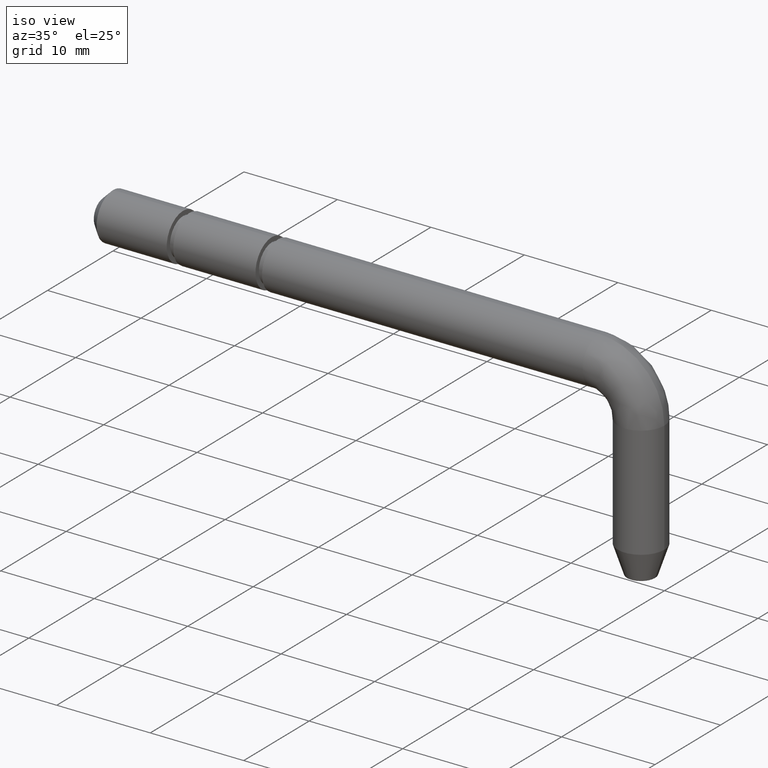
[diagram: clean part render]
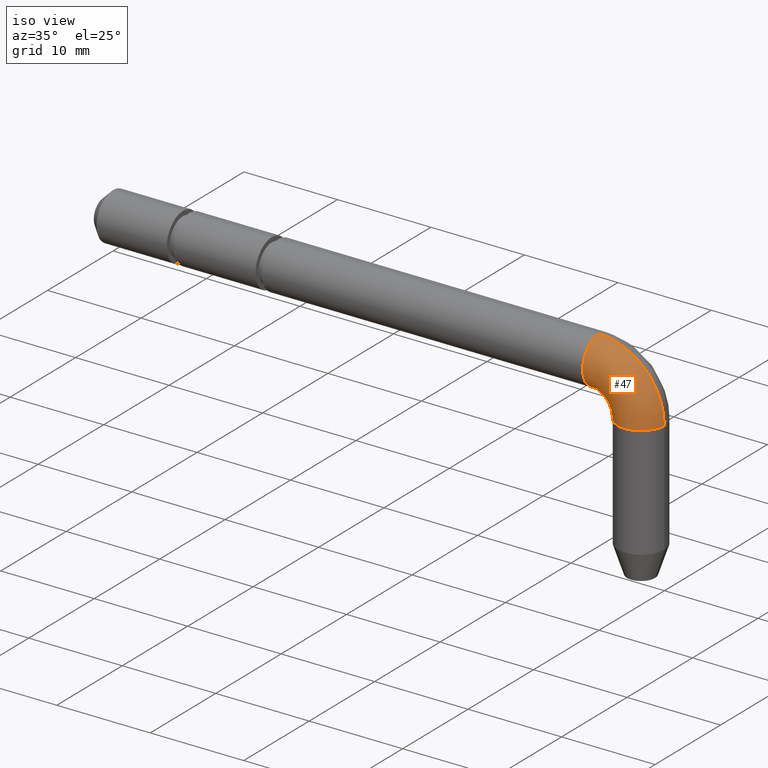
[diagram: same view with one face highlighted and labeled with its STEP entity id]
A machine part, iso view. The second image highlights one B-rep face of the part: STEP entity #47.
In plain terms, the highlighted face is a freeform B-spline surface patch.
Its self-contained STEP definition (entity closure, byte-faithful):
#47=ADVANCED_FACE('',(#139),#138,.T.);
#138=( BOUNDED_SURFACE() B_SPLINE_SURFACE( 2,2,((#378,#379,#380),(#381,#382,#383),(#384,#385,#386),(#387,#388,#389),(#390,#391,#392),(#393,#394,#395),(#396,#397,#398)), .UNSPECIFIED.,.F.,.F.,.F.) B_SPLINE_SURFACE_WITH_KNOTS((3,2,2,3),(3,3),(-1.48671086901E-03,1.04670198091E+00,2.09489067268E+00,3.14307936446E+00),(0.00000000000E+00,1.57079632677E+00), .UNSPECIFIED. ) GEOMETRIC_REPRESENTATION_ITEM() RATIONAL_B_SPLINE_SURFACE(((1.00000000000E+00,7.07106781191E-01,9.99999999991E-01),(8.65777512306E-01,6.12197149954E-01,8.65777512298E-01),(1.00000000000E+00,7.07106781191E-01,9.99999999991E-01),(8.65777512306E-01,6.12197149954E-01,8.65777512298E-01),(1.00000000000E+00,7.07106781191E-01,9.99999999991E-01),(8.65777512306E-01,6.12197149954E-01,8.65777512298E-01),(1.00000000000E+00,7.07106781191E-01,9.99999999991E-01))) REPRESENTATION_ITEM('') SURFACE() );
#139=FACE_OUTER_BOUND('',#399,.T.);
#378=CARTESIAN_POINT('',(5.30000000000E+01,3.71677580336E-03,2.49999723712E+00));
#379=CARTESIAN_POINT('',(5.99999972370E+01,3.71677580334E-03,2.49999723712E+00));
#380=CARTESIAN_POINT('',(5.99999972372E+01,3.71677580330E-03,-4.49999999992E+00));
#381=CARTESIAN_POINT('',(5.30000000000E+01,-1.44130967407E+00,2.50214557523E+00));
#382=CARTESIAN_POINT('',(6.00021455751E+01,-1.44130967407E+00,2.50214557523E+00));
#383=CARTESIAN_POINT('',(6.00021455753E+01,-1.44130967407E+00,-4.49999999992E+00));
#384=CARTESIAN_POINT('',(5.30000000000E+01,-2.16444378077E+00,1.25107278762E+00));
#385=CARTESIAN_POINT('',(5.87510727876E+01,-2.16444378077E+00,1.25107278762E+00));
#386=CARTESIAN_POINT('',(5.87510727877E+01,-2.16444378077E+00,-4.49999999994E+00));
#387=CARTESIAN_POINT('',(5.30000000000E+01,-2.88757788747E+00,4.51372272892E-12));
#388=CARTESIAN_POINT('',(5.75000000000E+01,-2.88757788747E+00,4.51372272892E-12));
#389=CARTESIAN_POINT('',(5.75000000001E+01,-2.88757788747E+00,-4.49999999997E+00));
#390=CARTESIAN_POINT('',(5.30000000000E+01,-2.16444378077E+00,-1.25107278761E+00));
#391=CARTESIAN_POINT('',(5.62489272124E+01,-2.16444378077E+00,-1.25107278761E+00));
#392=CARTESIAN_POINT('',(5.62489272124E+01,-2.16444378077E+00,-4.50000000000E+00));
#393=CARTESIAN_POINT('',(5.30000000000E+01,-1.44130967407E+00,-2.50214557522E+00));
#394=CARTESIAN_POINT('',(5.49978544248E+01,-1.44130967407E+00,-2.50214557522E+00));
#395=CARTESIAN_POINT('',(5.49978544248E+01,-1.44130967407E+00,-4.50000000002E+00));
#396=CARTESIAN_POINT('',(5.30000000000E+01,3.71677580333E-03,-2.49999723711E+00));
#397=CARTESIAN_POINT('',(5.50000027629E+01,3.71677580332E-03,-2.49999723711E+00));
#398=CARTESIAN_POINT('',(5.50000027629E+01,3.71677580331E-03,-4.50000000002E+00));
#399=EDGE_LOOP('',(#528,#529,#530,#531));
#528=ORIENTED_EDGE('',*,*,#620,.T.);
#529=ORIENTED_EDGE('',*,*,#597,.F.);
#530=ORIENTED_EDGE('',*,*,#621,.F.);
#531=ORIENTED_EDGE('',*,*,#599,.T.);
#597=EDGE_CURVE('',#642,#650,#651,.T.);
#599=EDGE_CURVE('',#643,#657,#664,.T.);
#620=EDGE_CURVE('',#657,#650,#810,.T.);
#621=EDGE_CURVE('',#643,#642,#816,.T.);
#642=VERTEX_POINT('',#946);
#643=VERTEX_POINT('',#947);
#650=VERTEX_POINT('',#952);
#651=CIRCLE('',#956,2.00000000007E+00);
#657=VERTEX_POINT('',#957);
#664=(BOUNDED_CURVE() B_SPLINE_CURVE(3,(#962,#963,#964,#965,#966),.UNSPECIFIED.,.F.,.F.) B_SPLINE_CURVE_WITH_KNOTS((4,1,4),(1.57079632684E+00,2.35619449023E+00,3.14159265361E+00),.UNSPECIFIED.) CURVE() GEOMETRIC_REPRESENTATION_ITEM() RATIONAL_B_SPLINE_CURVE((1.00000000000E+00,1.00000000000E+00,1.00000000000E+00,1.00000000000E+00,1.00000000000E+00)) REPRESENTATION_ITEM('') );
#810=CIRCLE('',#1070,2.50000000000E+00);
#816=CIRCLE('',#1074,2.50000000000E+00);
#946=CARTESIAN_POINT('',(5.50000000000E+01,1.48029736617E-16,-4.50000000000E+00));
#947=CARTESIAN_POINT('',(6.00000000000E+01,3.06151588456E-16,-4.50000000000E+00));
#952=CARTESIAN_POINT('',(5.30000000000E+01,-1.77635683940E-15,-2.50000000000E+00));
#953=CARTESIAN_POINT('',(5.30000000000E+01,-1.35407846116E-14,-4.50000000007E+00));
#954=DIRECTION('',(-3.34460052969E-15,-1.00000000000E+00,5.64863531475E-15));
#955=DIRECTION('',(-1.00000000000E+00,3.34460052969E-15,-1.86517468131E-14));
#956=AXIS2_PLACEMENT_3D('',#953,#954,#955);
#957=CARTESIAN_POINT('',(5.30000000000E+01,3.06151588456E-16,2.50000000000E+00));
#962=CARTESIAN_POINT('',(6.00000000001E+01,-3.66468367297E-14,-4.49999999979E+00));
#963=CARTESIAN_POINT('',(6.00155684147E+01,-2.64401204431E-14,-2.68384692158E+00));
#964=CARTESIAN_POINT('',(5.84836341900E+01,-6.00149098924E-16,9.83634190290E-01));
#965=CARTESIAN_POINT('',(5.48161530780E+01,2.03194479311E-14,2.51556841478E+00));
#966=CARTESIAN_POINT('',(5.29999999999E+01,2.63058141809E-14,2.50000000001E+00));
#1067=CARTESIAN_POINT('',(5.30000000000E+01,1.79986057494E-16,-2.51600469243E-31));
#1068=DIRECTION('',(1.00000000000E+00,0.00000000000E+00,0.00000000000E+00));
#1069=DIRECTION('',(-0.00000000000E+00,7.19944229977E-17,-1.00000000000E+00));
#1070=AXIS2_PLACEMENT_3D('',#1067,#1068,#1069);
#1071=CARTESIAN_POINT('',(5.75000000000E+01,-1.53080849893E-16,-4.50000000000E+00));
#1072=DIRECTION('',(0.00000000000E+00,0.00000000000E+00,-1.00000000000E+00));
#1073=DIRECTION('',(-1.00000000000E+00,-6.12323399574E-17,-0.00000000000E+00));
#1074=AXIS2_PLACEMENT_3D('',#1071,#1072,#1073);